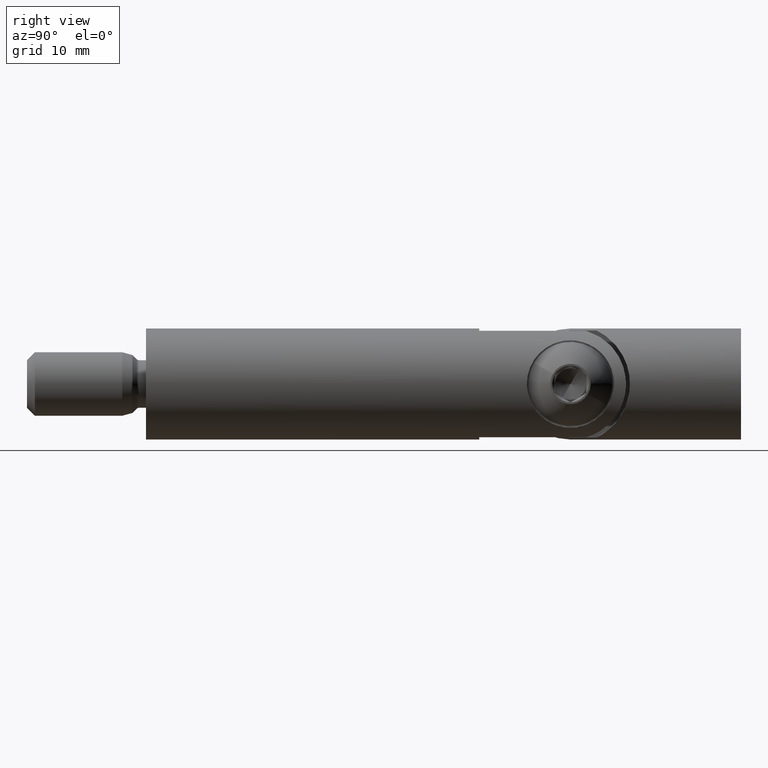
[diagram: clean part render]
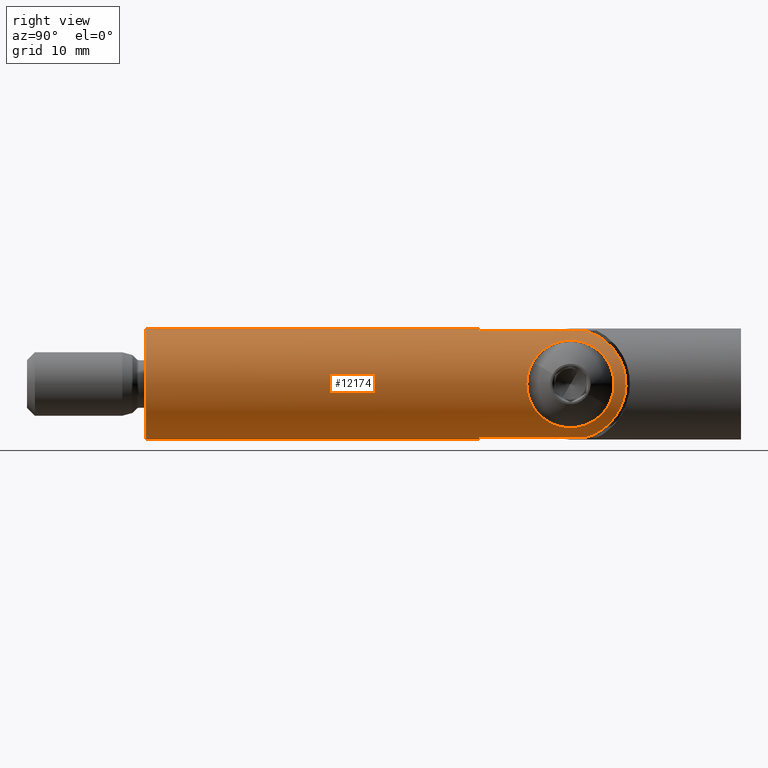
[diagram: same view with one face highlighted and labeled with its STEP entity id]
A machine part, right view. The second image highlights one B-rep face of the part: STEP entity #12174.
In plain terms, the highlighted cylindrical surface (partial cylindrical patch) has radius 7 mm, axis along (-0, -1, -0).
Its self-contained STEP definition (entity closure, byte-faithful):
#53 = ORIENTED_EDGE ( 'NONE', *, *, #2518, .F. ) ;
#156 = EDGE_CURVE ( 'NONE', #492, #8489, #1693, .T. ) ;
#199 = CARTESIAN_POINT ( 'NONE',  ( 5.639211792954384400, 57.11718560579954800, 4.157399225194838600 ) ) ;
#288 = CARTESIAN_POINT ( 'NONE',  ( 4.518641674499009200, 54.80348821239390800, -5.346530541834000300 ) ) ;
#446 = DIRECTION ( 'NONE',  ( -0.0000000000000000000, -1.000000000000000000, -0.0000000000000000000 ) ) ;
#450 = CARTESIAN_POINT ( 'NONE',  ( 7.007632536554764300, 47.99029591838348100, 0.009726656246726734700 ) ) ;
#480 = CARTESIAN_POINT ( 'NONE',  ( 4.519197805659932700, 54.80535390691898100, 5.346060195283493000 ) ) ;
#492 = VERTEX_POINT ( 'NONE', #4590 ) ;
#503 = CARTESIAN_POINT ( 'NONE',  ( 4.519484047027380500, 52.19372721919618400, -5.345817098434361400 ) ) ;
#528 = CARTESIAN_POINT ( 'NONE',  ( 2.000000000000001800, 55.50000000000002100, -6.708203932499365000 ) ) ;
#641 = AXIS2_PLACEMENT_3D ( 'NONE', #5080, #8319, #9613 ) ;
#891 = VERTEX_POINT ( 'NONE', #10838 ) ;
#1127 = EDGE_LOOP ( 'NONE', ( #7218, #8364, #53, #10974, #4242, #1949, #14202, #10152 ) ) ;
#1289 = LINE ( 'NONE', #11940, #2703 ) ;
#1324 = CARTESIAN_POINT ( 'NONE',  ( 5.472077794092318600, 56.85374501634771600, 4.372657788776558100 ) ) ;
#1372 = CARTESIAN_POINT ( 'NONE',  ( 4.574617726922026500, 54.98421044356374000, 5.299017119938606700 ) ) ;
#1426 = CARTESIAN_POINT ( 'NONE',  ( 6.752896078488857900, 58.68197807513649900, -1.852392134489932600 ) ) ;
#1588 = CARTESIAN_POINT ( 'NONE',  ( 6.412469452071438700, 48.76832727443636600, -2.825790747951237400 ) ) ;
#1639 = CARTESIAN_POINT ( 'NONE',  ( 6.763366467986200400, 48.30364915491699000, -1.839204383883984000 ) ) ;
#1693 = B_SPLINE_CURVE_WITH_KNOTS ( 'NONE', 3,
 ( #8220, #10421, #2486, #3753, #4748, #3602, #2530, #11602, #8083, #4846, #12632, #4889, #3804, #5877, #4945, #12817, #2724, #8377, #450, #6121, #13993, #7191, #10618, #1639, #8333, #1588, #3853, #9524, #7243, #6079, #13945, #9470, #11752, #12869, #4997, #503, #6918, #9208, #7971, #12997, #4217 ),
 .UNSPECIFIED., .F., .F.,
 ( 4, 2, 2, 2, 2, 2, 2, 2, 2, 1, 2, 2, 2, 2, 2, 2, 2, 2, 2, 2, 4 ),
 ( 0.01818439866543487100, 0.01932040318023527800, 0.02045640769503568800, 0.02159241220983609500, 0.02272841672463650100, 0.02386442123943691200, 0.02500042575423731800, 0.02613643026903772500, 0.02670443252643792800, 0.02727243478383813500, 0.02784043704123833800, 0.02840843929863854200, 0.02954444381343895200, 0.03068044832823936500, 0.03181645284303977900, 0.03295245735784019200, 0.03408846187264059900, 0.03465646413004080900, 0.03522446638744101300, 0.03579246864484121600, 0.03636047090224142600 ),
 .UNSPECIFIED. ) ;
#1787 = VECTOR ( 'NONE', #11100, 1000.000000000000000 ) ;
#1949 = ORIENTED_EDGE ( 'NONE', *, *, #12342, .F. ) ;
#2370 = CARTESIAN_POINT ( 'NONE',  ( 6.407049158269247300, 58.22433135563783000, -2.837932847601924100 ) ) ;
#2417 = CARTESIAN_POINT ( 'NONE',  ( 6.537336558496928500, 58.39797312861957600, 2.508375037338216500 ) ) ;
#2465 = CARTESIAN_POINT ( 'NONE',  ( 4.330127018922196300, 53.50000000000000000, -5.500000000000005300 ) ) ;
#2486 = CARTESIAN_POINT ( 'NONE',  ( 4.381711536334039500, 52.74240409699325500, 5.460287828193203900 ) ) ;
#2518 = EDGE_CURVE ( 'NONE', #9317, #891, #5428, .T. ) ;
#2530 = CARTESIAN_POINT ( 'NONE',  ( 5.140929530618920200, 50.71925362934011600, 4.757480964554996000 ) ) ;
#2557 = CARTESIAN_POINT ( 'NONE',  ( 6.762739449558574200, 58.69552729103083500, 1.841197217326557600 ) ) ;
#2703 = VECTOR ( 'NONE', #2829, 1000.000000000000000 ) ;
#2724 = CARTESIAN_POINT ( 'NONE',  ( 6.960496336383267900, 48.05035203094363500, 0.7665261965451993800 ) ) ;
#2829 = DIRECTION ( 'NONE',  ( -0.0000000000000000000, -1.000000000000000000, -0.0000000000000000000 ) ) ;
#3106 = CARTESIAN_POINT ( 'NONE',  ( 0.0000000000000000000, 0.0000000000000000000, -6.999999999999990200 ) ) ;
#3422 = EDGE_LOOP ( 'NONE', ( #10386, #7927 ) ) ;
#3497 = CARTESIAN_POINT ( 'NONE',  ( 5.469042501406026000, 56.84874947087534700, -4.376388289812890500 ) ) ;
#3547 = CARTESIAN_POINT ( 'NONE',  ( 6.408306307048527600, 58.22437945285694400, 2.821759182149328200 ) ) ;
#3587 = CARTESIAN_POINT ( 'NONE',  ( 4.980657885628819900, 55.97798577821350800, 4.922663588529415400 ) ) ;
#3602 = CARTESIAN_POINT ( 'NONE',  ( 4.978697894018924200, 51.02584834987403900, 4.924650651580436500 ) ) ;
#3627 = CARTESIAN_POINT ( 'NONE',  ( 6.123759610155000900, 57.83236171993800000, 3.406480096426386200 ) ) ;
#3679 = CARTESIAN_POINT ( 'NONE',  ( 4.763418735986268100, 55.49023159844372100, -5.130272217416195000 ) ) ;
#3688 = EDGE_CURVE ( 'NONE', #12527, #13525, #14474, .T. ) ;
#3753 = CARTESIAN_POINT ( 'NONE',  ( 4.564636563695206200, 52.01323757000890400, 5.308317265926604000 ) ) ;
#3804 = CARTESIAN_POINT ( 'NONE',  ( 6.536566839910174000, 48.60247043285980300, 2.529616537936394400 ) ) ;
#3827 = CARTESIAN_POINT ( 'NONE',  ( 10.18181818181816200, 63.68181818181815900, -4.268857047954129200 ) ) ;
#3853 = CARTESIAN_POINT ( 'NONE',  ( 6.124201327122398700, 49.16700978500745100, -3.405732803645709100 ) ) ;
#3977 = CARTESIAN_POINT ( 'NONE',  ( 10.18181818181816400, 63.68181818181815900, 4.268857047954127500 ) ) ;
#4144 = DIRECTION ( 'NONE',  ( -0.0000000000000000000, -1.000000000000000000, -0.0000000000000000000 ) ) ;
#4159 = DIRECTION ( 'NONE',  ( 0.0000000000000000000, 0.0000000000000000000, -1.000000000000000000 ) ) ;
#4217 = CARTESIAN_POINT ( 'NONE',  ( 4.330127018922196300, 53.50000000000000000, -5.500000000000005300 ) ) ;
#4242 = ORIENTED_EDGE ( 'NONE', *, *, #3688, .F. ) ;
#4590 = CARTESIAN_POINT ( 'NONE',  ( 4.330127018922306400, 53.49999999999988600, 5.500000000000002700 ) ) ;
#4631 = CARTESIAN_POINT ( 'NONE',  ( 6.598055118728652200, 58.47860885108372000, 2.344532291128736700 ) ) ;
#4727 = CARTESIAN_POINT ( 'NONE',  ( 6.702587673185213600, 58.61633923314489900, -2.026410756884483400 ) ) ;
#4731 = CYLINDRICAL_SURFACE ( 'NONE', #9660, 7.000000000000000000 ) ;
#4748 = CARTESIAN_POINT ( 'NONE',  ( 4.690822759035758500, 51.67303206798794000, 5.199596003857630300 ) ) ;
#4781 = CARTESIAN_POINT ( 'NONE',  ( 2.000000000000003600, 42.00000000000000000, -6.708203932499365000 ) ) ;
#4824 = CARTESIAN_POINT ( 'NONE',  ( 5.141011918187206000, 56.28095319619829000, -4.757435948329100700 ) ) ;
#4846 = CARTESIAN_POINT ( 'NONE',  ( 5.959888016800597700, 49.40076994837417600, 3.682938467230364700 ) ) ;
#4861 = VERTEX_POINT ( 'NONE', #11164 ) ;
#4889 = CARTESIAN_POINT ( 'NONE',  ( 6.406229643317486100, 48.77679160556236600, 2.839664223447648400 ) ) ;
#4923 = CARTESIAN_POINT ( 'NONE',  ( 4.428083658012212700, 54.44272206825868900, 5.421769410065435200 ) ) ;
#4945 = CARTESIAN_POINT ( 'NONE',  ( 6.846321943609231300, 48.19674714074444200, 1.505326204670951500 ) ) ;
#4997 = CARTESIAN_POINT ( 'NONE',  ( 4.574836818815187600, 52.01506289652022000, -5.298832792529523800 ) ) ;
#5080 = CARTESIAN_POINT ( 'NONE',  ( 0.0000000000000000000, 42.00000000000000000, 0.0000000000000000000 ) ) ;
#5310 = EDGE_CURVE ( 'NONE', #11425, #4861, #10787, .T. ) ;
#5428 = CIRCLE ( 'NONE', #11221, 7.000000000000000000 ) ;
#5587 = CARTESIAN_POINT ( 'NONE',  ( 4.330127018922196300, 53.50000000000000000, -5.500000000000005300 ) ) ;
#5625 = DIRECTION ( 'NONE',  ( -0.0000000000000000000, 1.000000000000000000, -0.0000000000000000000 ) ) ;
#5761 = CARTESIAN_POINT ( 'NONE',  ( 6.939886827421139200, 58.92333939778238500, 0.9344020694859691600 ) ) ;
#5812 = CARTESIAN_POINT ( 'NONE',  ( 7.000211044381927600, 59.00026860204965800, 0.1814224726587969900 ) ) ;
#5877 = CARTESIAN_POINT ( 'NONE',  ( 6.758679285805238900, 48.30973647135605400, 1.856318990163549100 ) ) ;
#6079 = CARTESIAN_POINT ( 'NONE',  ( 5.472837526310870600, 50.14494703680269100, -4.371769634081766200 ) ) ;
#6121 = CARTESIAN_POINT ( 'NONE',  ( 6.992886995373566200, 48.00904285874848700, -0.3678985816999236800 ) ) ;
#6152 = CARTESIAN_POINT ( 'NONE',  ( 4.330127018922306400, 53.49999999999988600, 5.500000000000002700 ) ) ;
#6209 = CARTESIAN_POINT ( 'NONE',  ( 4.330127018922191000, 53.69125714729353400, 5.500000000000003600 ) ) ;
#6247 = EDGE_CURVE ( 'NONE', #6901, #891, #1289, .T. ) ;
#6880 = CARTESIAN_POINT ( 'NONE',  ( 6.967224025703914400, 58.95843941775717000, -0.7715360179236494500 ) ) ;
#6901 = VERTEX_POINT ( 'NONE', #13667 ) ;
#6918 = CARTESIAN_POINT ( 'NONE',  ( 4.428529916354914800, 52.55528324531403700, -5.421403810932894800 ) ) ;
#6924 = CARTESIAN_POINT ( 'NONE',  ( 4.330127018922196300, 53.88503459772781000, -5.500000000000005300 ) ) ;
#6972 = CARTESIAN_POINT ( 'NONE',  ( 6.339715494630915800, 58.13106079966758700, 2.972228465262284100 ) ) ;
#7026 = CARTESIAN_POINT ( 'NONE',  ( 4.978728017547207500, 55.97410341681685300, -4.924598627689409400 ) ) ;
#7145 = LINE ( 'NONE', #9968, #13848 ) ;
#7191 = CARTESIAN_POINT ( 'NONE',  ( 6.939826420599051600, 48.07673844380793300, -0.9346797176019583400 ) ) ;
#7218 = ORIENTED_EDGE ( 'NONE', *, *, #14200, .F. ) ;
#7222 = CARTESIAN_POINT ( 'NONE',  ( 4.392137359826588000, 54.25854553951938900, 5.450698380749661200 ) ) ;
#7243 = CARTESIAN_POINT ( 'NONE',  ( 5.640182641989929000, 49.88131979311754800, -4.156051103490172600 ) ) ;
#7551 = CARTESIAN_POINT ( 'NONE',  ( 0.0000000000000000000, 0.0000000000000000000, 0.0000000000000000000 ) ) ;
#7740 = CARTESIAN_POINT ( 'NONE',  ( 0.0000000000000000000, 42.00000000000000000, 0.0000000000000000000 ) ) ;
#7927 = ORIENTED_EDGE ( 'NONE', *, *, #156, .F. ) ;
#7971 = CARTESIAN_POINT ( 'NONE',  ( 4.343239327089206900, 53.11481009218789500, -5.489741830845623800 ) ) ;
#7981 = EDGE_CURVE ( 'NONE', #4861, #13633, #11624, .T. ) ;
#8083 = CARTESIAN_POINT ( 'NONE',  ( 5.634418784869818200, 49.89027745018501700, 4.163847485549226200 ) ) ;
#8106 = CARTESIAN_POINT ( 'NONE',  ( 4.697365174980627800, 55.32783830806644700, 5.190517334307914500 ) ) ;
#8153 = CARTESIAN_POINT ( 'NONE',  ( 4.573796947574694900, 54.98163716731788500, -5.299720030575785200 ) ) ;
#8199 = CARTESIAN_POINT ( 'NONE',  ( 4.696027008214875000, 55.32436285859412100, -5.191722378772406700 ) ) ;
#8220 = CARTESIAN_POINT ( 'NONE',  ( 4.330127018922306400, 53.49999999999988600, 5.500000000000002700 ) ) ;
#8319 = DIRECTION ( 'NONE',  ( -0.0000000000000000000, 1.000000000000000000, -0.0000000000000000000 ) ) ;
#8333 = CARTESIAN_POINT ( 'NONE',  ( 6.542824856651344900, 48.59413685171209400, -2.513412350006158900 ) ) ;
#8364 = ORIENTED_EDGE ( 'NONE', *, *, #6247, .T. ) ;
#8377 = CARTESIAN_POINT ( 'NONE',  ( 6.991820335387575200, 48.01040025683342100, 0.3879691436902546500 ) ) ;
#8489 = VERTEX_POINT ( 'NONE', #5587 ) ;
#8559 = CIRCLE ( 'NONE', #14559, 7.000000000000000000 ) ;
#8581 = CARTESIAN_POINT ( 'NONE',  ( 0.0000000000000000000, 0.0000000000000000000, 0.0000000000000000000 ) ) ;
#8876 = DIRECTION ( 'NONE',  ( 0.0000000000000000000, 0.0000000000000000000, -1.000000000000000000 ) ) ;
#8950 = FACE_OUTER_BOUND ( 'NONE', #1127, .T. ) ;
#9107 = CARTESIAN_POINT ( 'NONE',  ( 6.118761982340821200, 57.82530646751459400, -3.415390690307229100 ) ) ;
#9158 = CARTESIAN_POINT ( 'NONE',  ( 6.999564306604391100, 58.99944548091135500, -0.3867488016776189900 ) ) ;
#9208 = CARTESIAN_POINT ( 'NONE',  ( 4.392494118280227500, 52.73931084414697100, -5.450411786515233300 ) ) ;
#9214 = CARTESIAN_POINT ( 'NONE',  ( 6.876854958624241100, 58.84244529080081100, -1.320316435885754000 ) ) ;
#9310 = CARTESIAN_POINT ( 'NONE',  ( 6.839840961106308900, 58.79478193106693600, -1.499845889937597700 ) ) ;
#9311 = CARTESIAN_POINT ( 'NONE',  ( 2.000000000000003600, 42.00000000000000000, 6.708203932499365000 ) ) ;
#9317 = VERTEX_POINT ( 'NONE', #3106 ) ;
#9470 = CARTESIAN_POINT ( 'NONE',  ( 4.981418642730971200, 51.02052013683179200, -4.921893279491671400 ) ) ;
#9524 = CARTESIAN_POINT ( 'NONE',  ( 5.965203083675143100, 49.39307486869242300, -3.674339829185504100 ) ) ;
#9613 = DIRECTION ( 'NONE',  ( 7.105427357601001900E-015, 0.0000000000000000000, -1.000000000000000000 ) ) ;
#9660 = AXIS2_PLACEMENT_3D ( 'NONE', #8581, #4144, #12092 ) ;
#9968 = CARTESIAN_POINT ( 'NONE',  ( 0.0000000000000000000, 0.0000000000000000000, -7.000000000000000000 ) ) ;
#10152 = ORIENTED_EDGE ( 'NONE', *, *, #5310, .F. ) ;
#10263 = CARTESIAN_POINT ( 'NONE',  ( 6.536999315311255100, 58.39809581122223400, -2.528186749634237200 ) ) ;
#10353 = CARTESIAN_POINT ( 'NONE',  ( 5.142769192629568700, 56.28424948931279200, 4.755596340490511900 ) ) ;
#10386 = ORIENTED_EDGE ( 'NONE', *, *, #13782, .F. ) ;
#10399 = CARTESIAN_POINT ( 'NONE',  ( 5.635442459809194600, 57.11127971664019800, -4.162378433175480700 ) ) ;
#10421 = CARTESIAN_POINT ( 'NONE',  ( 4.330127018922206100, 53.11766085434281600, 5.499999999999989300 ) ) ;
#10618 = CARTESIAN_POINT ( 'NONE',  ( 6.850351886073436700, 48.19155186534381800, -1.487261485796816700 ) ) ;
#10787 = LINE ( 'NONE', #12228, #1787 ) ;
#10838 = CARTESIAN_POINT ( 'NONE',  ( 8.572527594031461400E-016, 0.0000000000000000000, 6.999999999999990200 ) ) ;
#10974 = ORIENTED_EDGE ( 'NONE', *, *, #13585, .F. ) ;
#11052 = CARTESIAN_POINT ( 'NONE',  ( 2.000000000000001800, 55.50000000000002100, -6.708203932499365000 ) ) ;
#11100 = DIRECTION ( 'NONE',  ( 0.0000000000000000000, 1.000000000000000000, 0.0000000000000000000 ) ) ;
#11164 = CARTESIAN_POINT ( 'NONE',  ( 2.000000000000001800, 55.50000000000002100, 6.708203932499365000 ) ) ;
#11221 = AXIS2_PLACEMENT_3D ( 'NONE', #7551, #12056, #4159 ) ;
#11388 = CARTESIAN_POINT ( 'NONE',  ( 6.962684004290618000, 58.95244074703002500, 0.7460508896046681400 ) ) ;
#11425 = VERTEX_POINT ( 'NONE', #9311 ) ;
#11436 = CARTESIAN_POINT ( 'NONE',  ( 5.964810482598362100, 57.60637140969042500, 3.675012091154408200 ) ) ;
#11533 = CARTESIAN_POINT ( 'NONE',  ( 6.992752333776261200, 58.99078562300535100, 0.3701017048744625900 ) ) ;
#11602 = CARTESIAN_POINT ( 'NONE',  ( 5.467921536950593800, 50.15312685131381400, 4.377740927995243500 ) ) ;
#11624 =( BOUNDED_CURVE ( )  B_SPLINE_CURVE ( 3, ( #13971, #3977, #3827, #528 ),
 .UNSPECIFIED., .F., .F. ) 
 B_SPLINE_CURVE_WITH_KNOTS ( ( 4, 4 ),
 ( 1.860548028230946600, 4.422637278948640100 ),
 .UNSPECIFIED. ) 
 CURVE ( )  GEOMETRIC_REPRESENTATION_ITEM ( )  RATIONAL_B_SPLINE_CURVE ( ( 1.000000000000000000, 0.5238095238095252800, 0.5238095238095252800, 1.000000000000000000 ) ) 
 REPRESENTATION_ITEM ( '' )  );
#11700 = CARTESIAN_POINT ( 'NONE',  ( 2.000000000000015500, 0.0000000000000000000, -6.708203932499365000 ) ) ;
#11752 = CARTESIAN_POINT ( 'NONE',  ( 4.765770817492359900, 51.50415590306029400, -5.128091243567282300 ) ) ;
#11940 = CARTESIAN_POINT ( 'NONE',  ( 8.572527594031473200E-016, 0.0000000000000000000, 7.000000000000000000 ) ) ;
#12056 = DIRECTION ( 'NONE',  ( -0.0000000000000000000, -1.000000000000000000, -0.0000000000000000000 ) ) ;
#12092 = DIRECTION ( 'NONE',  ( 0.0000000000000000000, 0.0000000000000000000, -1.000000000000000000 ) ) ;
#12174 = ADVANCED_FACE ( 'NONE', ( #13511, #8950 ), #4731, .T. ) ;
#12228 = CARTESIAN_POINT ( 'NONE',  ( 2.000000000000015500, 0.0000000000000000000, 6.708203932499365000 ) ) ;
#12342 = EDGE_CURVE ( 'NONE', #13633, #12527, #13681, .T. ) ;
#12527 = VERTEX_POINT ( 'NONE', #4781 ) ;
#12616 = CARTESIAN_POINT ( 'NONE',  ( 6.849957484525695000, 58.80794138290067300, 1.489505985111247100 ) ) ;
#12632 = CARTESIAN_POINT ( 'NONE',  ( 6.118800279731658500, 49.17465190330180700, 3.415223899190796600 ) ) ;
#12707 = CARTESIAN_POINT ( 'NONE',  ( 5.959526870003809800, 57.59866929481922400, -3.683428487766158700 ) ) ;
#12814 = CARTESIAN_POINT ( 'NONE',  ( 0.0000000000000000000, 42.00000000000000000, -7.000000000000000000 ) ) ;
#12817 = CARTESIAN_POINT ( 'NONE',  ( 6.937002934152250300, 48.08035043643491200, 0.9552607372160932800 ) ) ;
#12869 = CARTESIAN_POINT ( 'NONE',  ( 4.698041462989344600, 51.67038258904467100, -5.189910143153370300 ) ) ;
#12935 = B_SPLINE_CURVE_WITH_KNOTS ( 'NONE', 3,
 ( #2465, #6924, #13668, #288, #8153, #8199, #3679, #7026, #4824, #3497, #10399, #12707, #9107, #2370, #10263, #4727, #1426, #9310, #9214, #6880, #9158, #5812, #11533, #11388, #5761, #12616, #2557, #4631, #2417, #3547, #6972, #3627, #11436, #199, #1324, #10353, #3587, #13722, #8106, #1372, #480, #4923, #7222, #14070, #6209, #6152 ),
 .UNSPECIFIED., .F., .F.,
 ( 4, 2, 2, 2, 2, 2, 2, 2, 2, 2, 2, 2, 2, 2, 2, 2, 2, 2, 2, 2, 2, 2, 4 ),
 ( 0.0000000000000000000, 0.001136524916589672100, 0.001704787374884508100, 0.002273049833179344200, 0.003409574749769014500, 0.004546099666358684900, 0.005682624582948356100, 0.006819149499538027300, 0.007387411957832861600, 0.007955674416127695900, 0.009092199332717371500, 0.009660461791012209300, 0.01022872424930704700, 0.01136524916589672800, 0.01193351162419156700, 0.01250177408248640700, 0.01363829899907610000, 0.01477482391566579300, 0.01591134883225548600, 0.01647961129055032900, 0.01704787374884517800, 0.01761613620714002500, 0.01818439866543487100 ),
 .UNSPECIFIED. ) ;
#12997 = CARTESIAN_POINT ( 'NONE',  ( 4.330127018922199000, 53.30757085261024700, -5.500000000000006200 ) ) ;
#13001 = VECTOR ( 'NONE', #446, 1000.000000000000000 ) ;
#13157 = DIRECTION ( 'NONE',  ( -0.0000000000000000000, -1.000000000000000000, -0.0000000000000000000 ) ) ;
#13511 = FACE_BOUND ( 'NONE', #3422, .T. ) ;
#13525 = VERTEX_POINT ( 'NONE', #12814 ) ;
#13585 = EDGE_CURVE ( 'NONE', #13525, #9317, #7145, .T. ) ;
#13633 = VERTEX_POINT ( 'NONE', #11052 ) ;
#13667 = CARTESIAN_POINT ( 'NONE',  ( 8.572527594031473200E-016, 42.00000000000000000, 7.000000000000000000 ) ) ;
#13668 = CARTESIAN_POINT ( 'NONE',  ( 4.381899820940813800, 54.25820959508826700, -5.460128169591876600 ) ) ;
#13681 = LINE ( 'NONE', #11700, #13001 ) ;
#13722 = CARTESIAN_POINT ( 'NONE',  ( 4.764965220792313400, 55.49393046297967700, 5.128839916542253800 ) ) ;
#13782 = EDGE_CURVE ( 'NONE', #8489, #492, #12935, .T. ) ;
#13848 = VECTOR ( 'NONE', #13157, 1000.000000000000000 ) ;
#13945 = CARTESIAN_POINT ( 'NONE',  ( 5.142119631477083200, 50.71686793326573900, -4.756356380513755000 ) ) ;
#13971 = CARTESIAN_POINT ( 'NONE',  ( 2.000000000000001800, 55.50000000000002100, 6.708203932499365000 ) ) ;
#13993 = CARTESIAN_POINT ( 'NONE',  ( 6.962792258086790500, 48.04742099311987100, -0.7452126322119060300 ) ) ;
#14070 = CARTESIAN_POINT ( 'NONE',  ( 4.343124385056432500, 53.88373190121762900, 5.489831873693365300 ) ) ;
#14200 = EDGE_CURVE ( 'NONE', #6901, #11425, #8559, .T. ) ;
#14202 = ORIENTED_EDGE ( 'NONE', *, *, #7981, .F. ) ;
#14474 = CIRCLE ( 'NONE', #641, 7.000000000000000000 ) ;
#14559 = AXIS2_PLACEMENT_3D ( 'NONE', #7740, #5625, #8876 ) ;